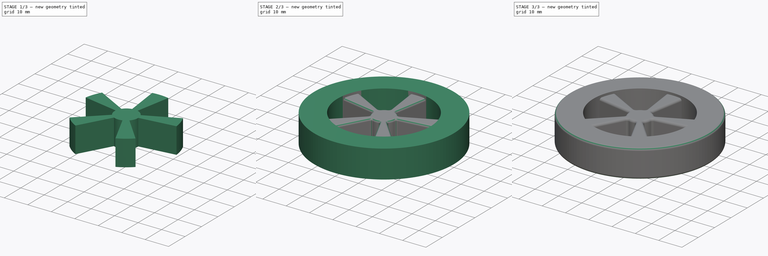
[diagram: build sequence overview — one tinted view per stage of 3, left to right]
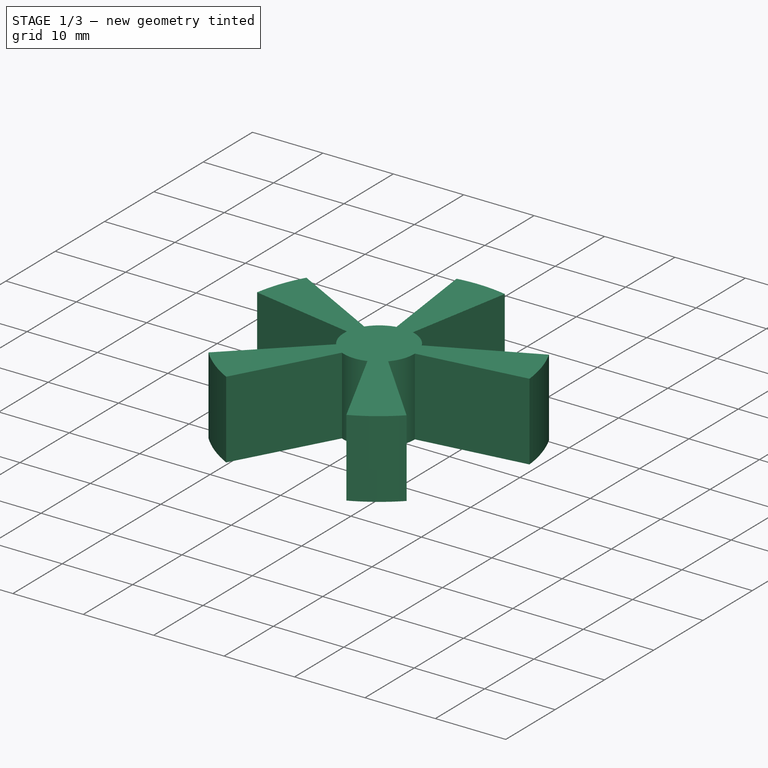
[diagram: stage 1 of 3 — iso view after this stage's code; geometry added in this stage tinted green]
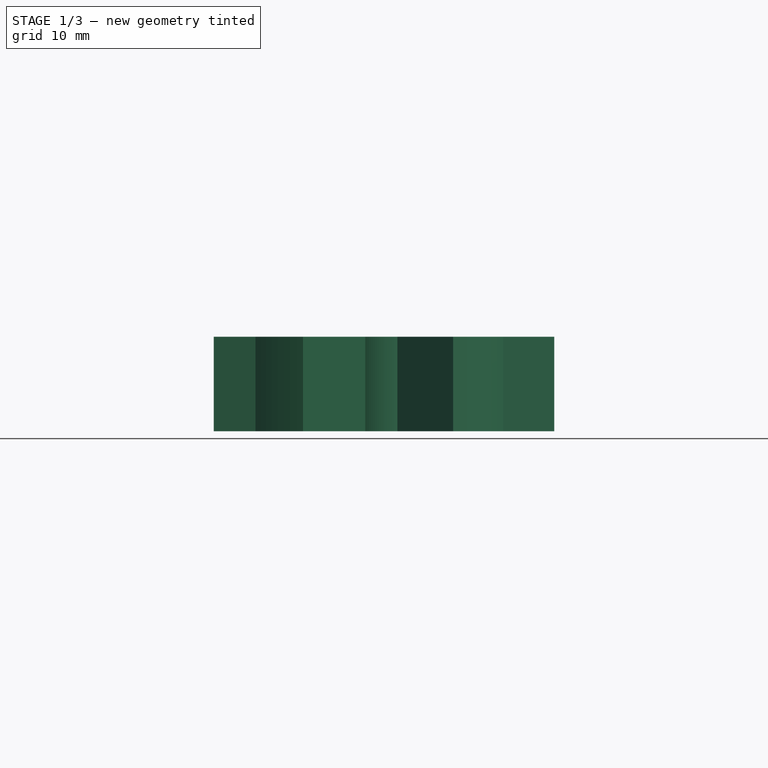
[diagram: stage 1 of 3 — front view after this stage's code; geometry added in this stage tinted green]
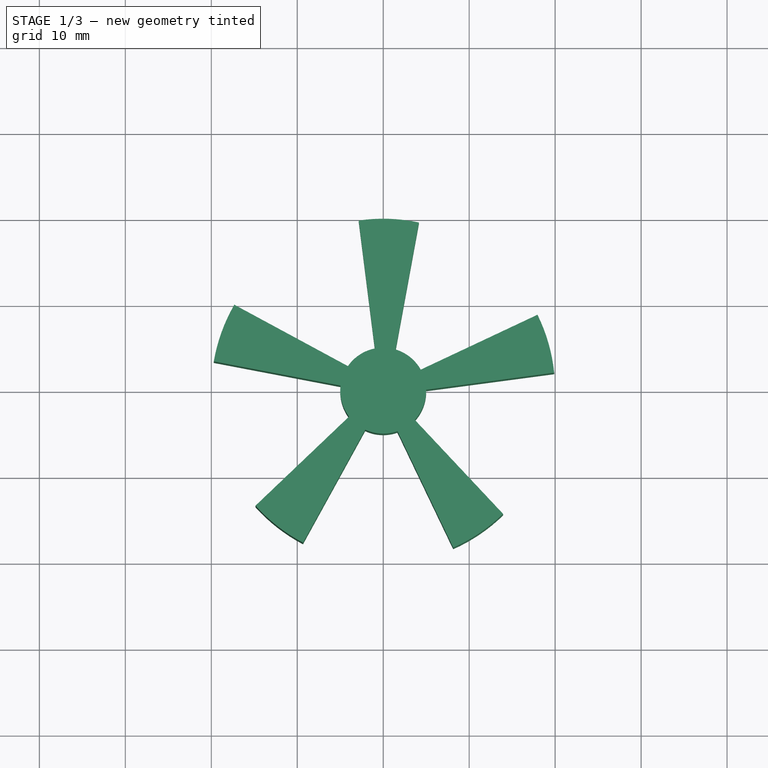
[diagram: stage 1 of 3 — top view after this stage's code; geometry added in this stage tinted green]
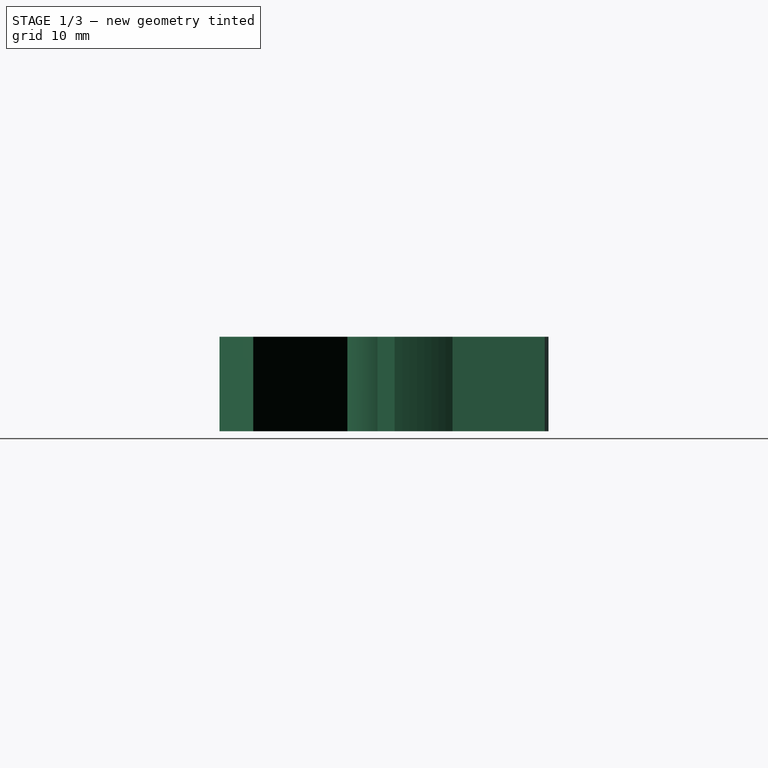
[diagram: stage 1 of 3 — right view after this stage's code; geometry added in this stage tinted green]
FCSTD DOCUMENT  (FreeCAD 0.18R4 (GitTag))
Label: wheel
License: All rights reserved
LicenseURL: http://en.wikipedia.org/wiki/All_rights_reserved
objects: Sketcher::SketchObject×2, PartDesign::Pad×2, PartDesign::Body×2, PartDesign::Fillet×2, App::Part×1, PartDesign::PolarPattern×1, PartDesign::Boolean×1, Part::Fillet×1
note: 13 computed .brp shape members not serialized (recipe doc carries the construction recipe); baked Part::Feature solids carry a one-line shape summary decoded from their .brp

FEATURE [PartDesign::Body] Body
  Group = -> [Sketch001,Pad]
  Origin = -> Origin001
  Tip = -> Pad
FEATURE [Sketcher::SketchObject] Sketch
  MapMode = 5
  Support = -> [XY_Plane002]
  sketch-geometry (4):
    g0: ArcOfCircle CenterX=0 CenterY=0 CenterZ=0 NormalX=0 NormalY=0 NormalZ=1 AngleXU=0 Radius=20 StartAngle=1.36159 EndAngle=1.71385
    g1: ArcOfCircle CenterX=0 CenterY=0 CenterZ=0 NormalX=0 NormalY=0 NormalZ=1 AngleXU=0 Radius=5 StartAngle=1.7665 EndAngle=7.56143
    g2: LineSegment StartX=-0.972303 StartY=4.90455 StartZ=0 EndX=-2.8514 EndY=19.7957 EndZ=0
    g3: LineSegment StartX=1.44198 StartY=4.78756 StartZ=0 EndX=4.15358 EndY=19.5639 EndZ=0
  constraints (8):
    c: Coincident(g0,g-1)
    c: Coincident(g1,g-1)
    c: Radius(g0) = 20
    c: Radius(g1) = 5
    c: Coincident(g3,g0)
    c: Coincident(g2,g0)
    c: Coincident(g1,g2)
    c: Coincident(g1,g3)
FEATURE [PartDesign::Pad] Pad001
  Length = 11
  Length2 = 100
  Profile = -> Sketch
  Refine = true
  Type = 0
FEATURE [PartDesign::PolarPattern] PolarPattern
  Angle = 360
  Axis = -> Sketch [N_Axis]
  BaseFeature = -> Pad001
  Occurrences = 5
  Originals = -> [Pad001]
  Refine = true
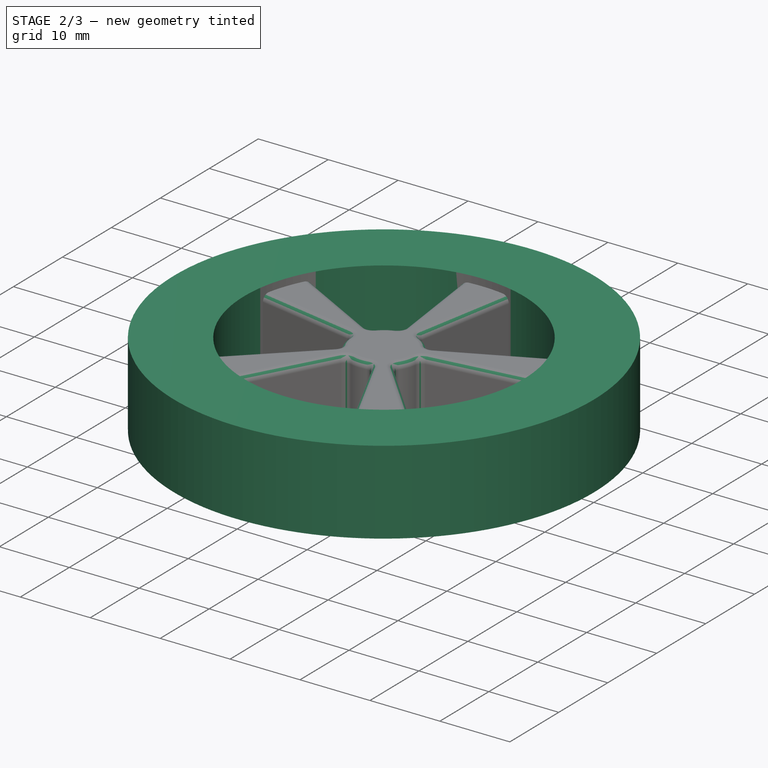
[diagram: stage 2 of 3 — iso view after this stage's code; geometry added in this stage tinted green]
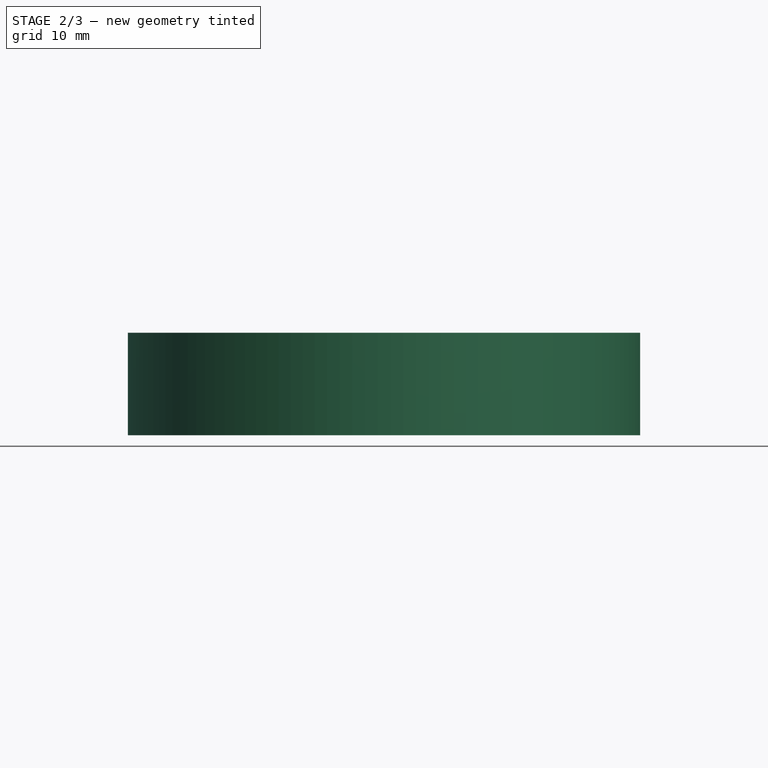
[diagram: stage 2 of 3 — front view after this stage's code; geometry added in this stage tinted green]
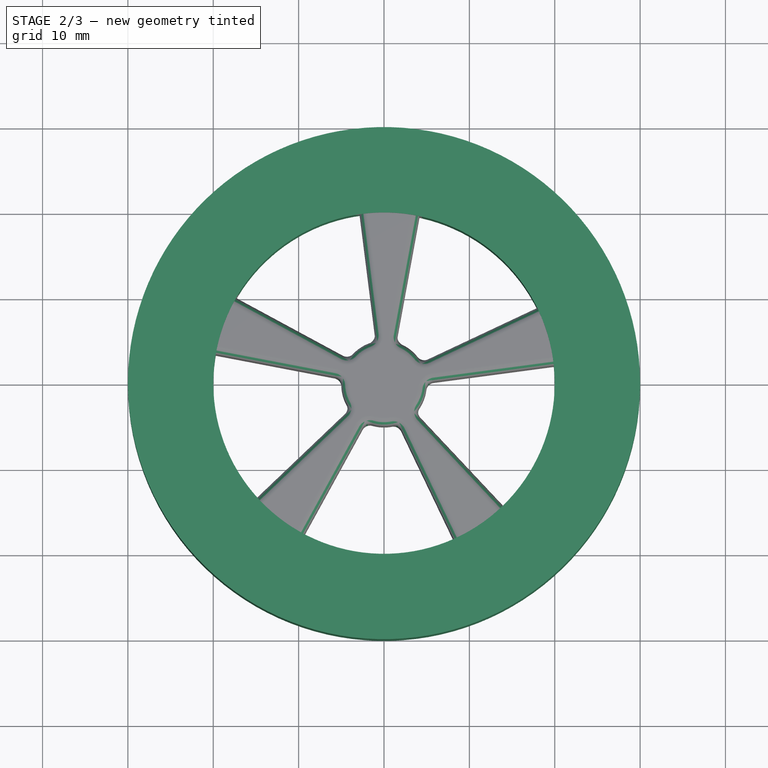
[diagram: stage 2 of 3 — top view after this stage's code; geometry added in this stage tinted green]
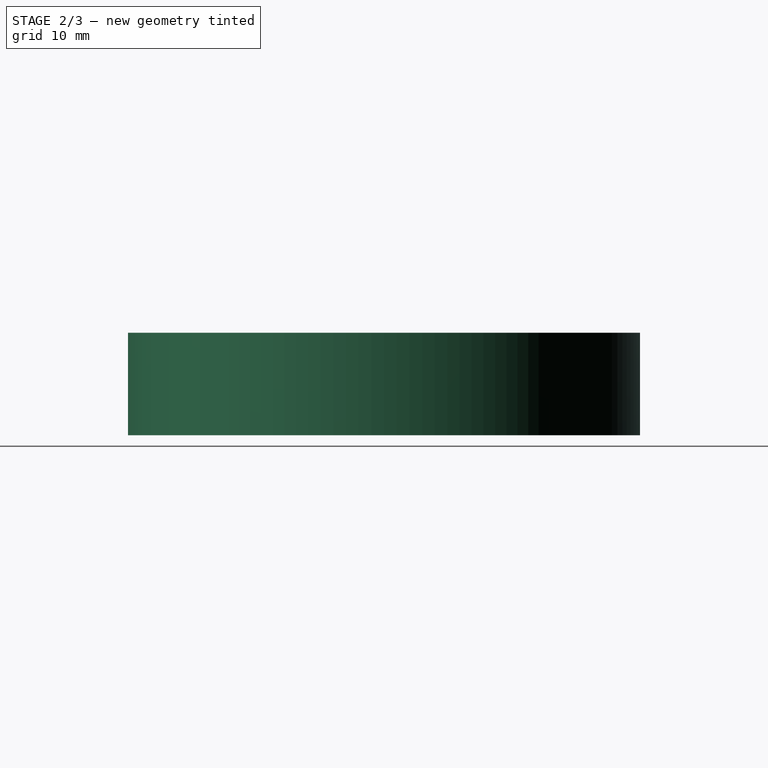
[diagram: stage 2 of 3 — right view after this stage's code; geometry added in this stage tinted green]
FEATURE [App::Part] Part
  Origin = -> Origin
FEATURE [Sketcher::SketchObject] Sketch001
  MapMode = 5
  Support = -> [XY_Plane001]
  sketch-geometry (2):
    g0: Circle CenterX=0 CenterY=0 CenterZ=0 NormalX=0 NormalY=0 NormalZ=1 AngleXU=0 Radius=30
    g1: Circle CenterX=0 CenterY=0 CenterZ=0 NormalX=0 NormalY=0 NormalZ=1 AngleXU=0 Radius=20
  constraints (3):
    c: Coincident(g0,g-1)
    c: Radius(g0) = 30
    c: Radius(g1) = 20
FEATURE [PartDesign::Pad] Pad
  Length = 12
  Length2 = 100
  Profile = -> Sketch001
  Type = 0
FEATURE [PartDesign::Fillet] Fillet
  Base = -> PolarPattern [Edge4,Edge2,Edge18,Edge25,Edge23,Edge15,Edge56,Edge54,Edge44,Edge42]
  BaseFeature = -> PolarPattern
  Radius = 1
FEATURE [PartDesign::Fillet] Fillet001
  Base = -> Fillet [Edge59,Edge37,Edge4,Edge35,Edge54,Edge50,Edge48,Edge46,Edge44,Edge42,Edge38,Edge39,Edge41,Edge43,Edge45,Edge63,Edge64,Edge62,Edge60,Edge58,Edge56,Edge55,Edge53,Edge51,Edge49]
  BaseFeature = -> Fillet
  Radius = 1
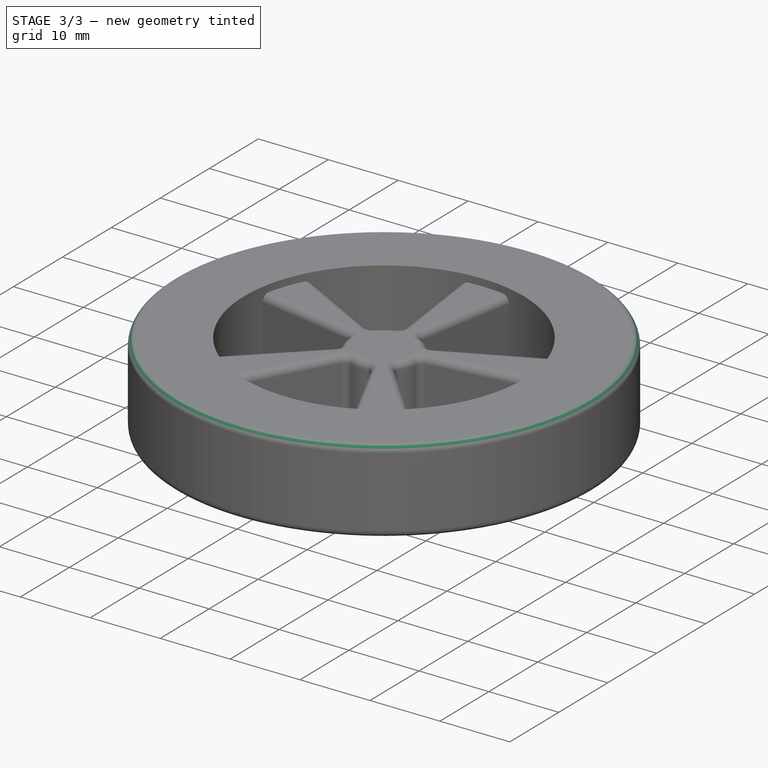
[diagram: stage 3 of 3 — iso view after this stage's code; geometry added in this stage tinted green]
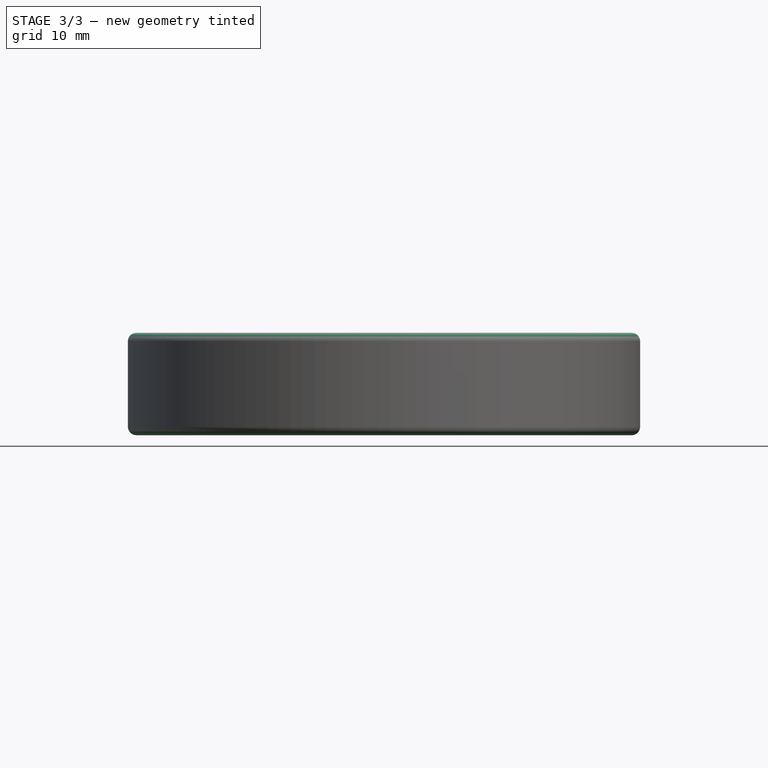
[diagram: stage 3 of 3 — front view after this stage's code; geometry added in this stage tinted green]
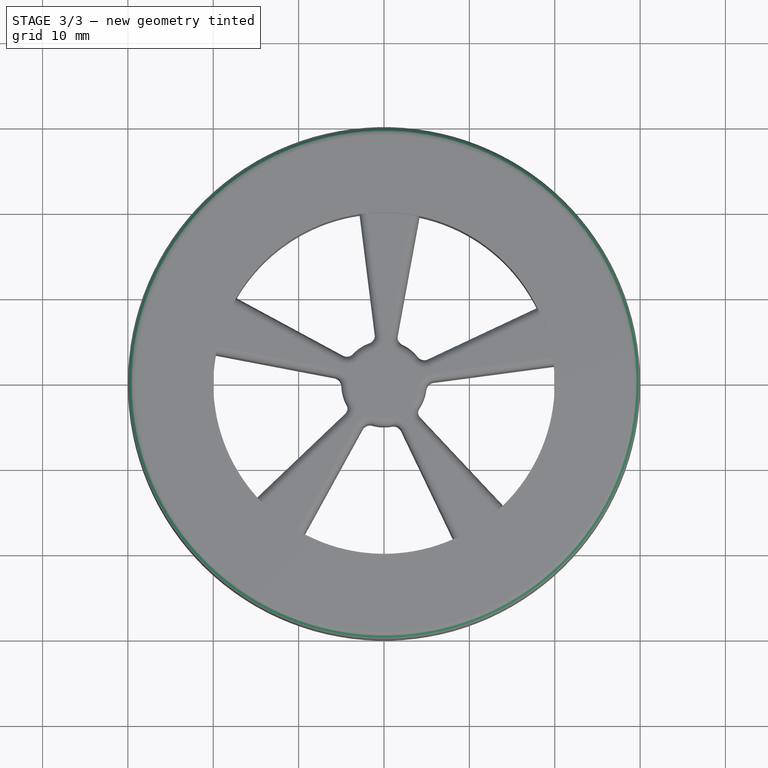
[diagram: stage 3 of 3 — top view after this stage's code; geometry added in this stage tinted green]
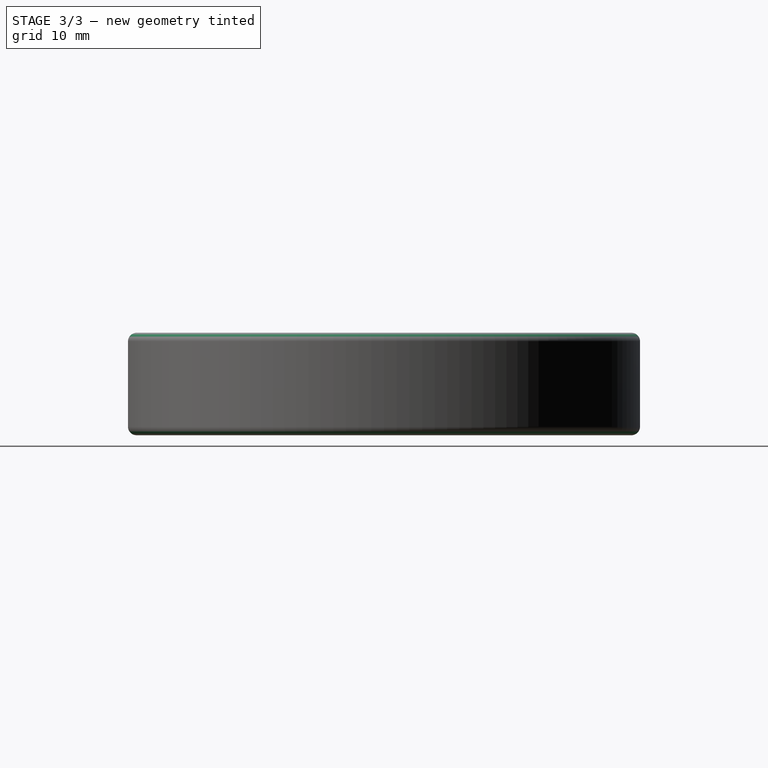
[diagram: stage 3 of 3 — right view after this stage's code; geometry added in this stage tinted green]
FEATURE [PartDesign::Boolean] Boolean
  BaseFeature = -> Fillet001
  Group = -> [Body]
  Type = 0
FEATURE [PartDesign::Body] Body001
  Group = -> [Sketch,Pad001,PolarPattern,Fillet,Fillet001,Boolean]
  Origin = -> Origin002
  Tip = -> Boolean
FEATURE [Part::Fillet] Fillet002
  Base = -> Boolean
  Edges = 2 edges r=1: [Edge2,Edge3]
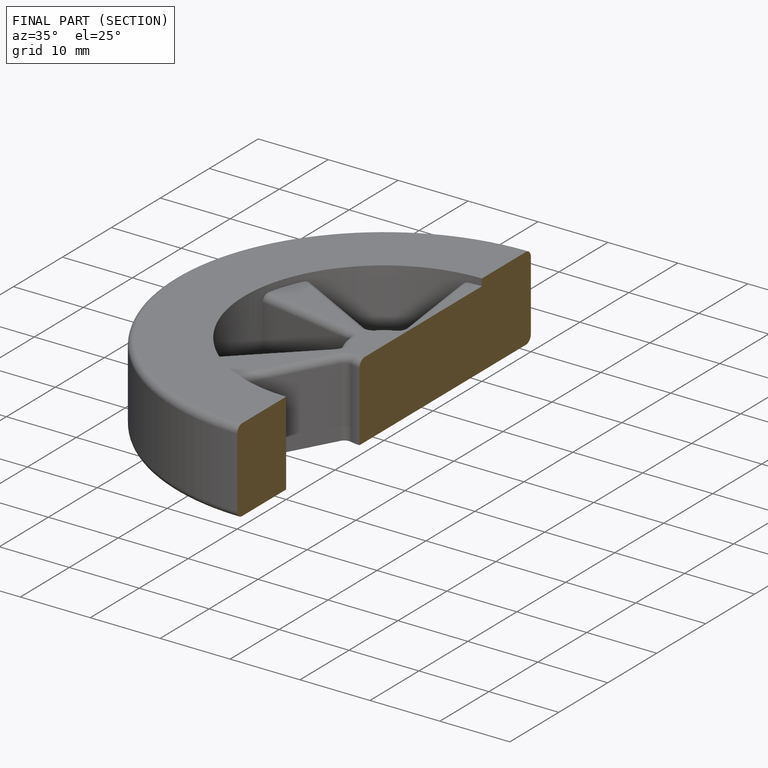
[diagram: finished part — half-section view (interior)]
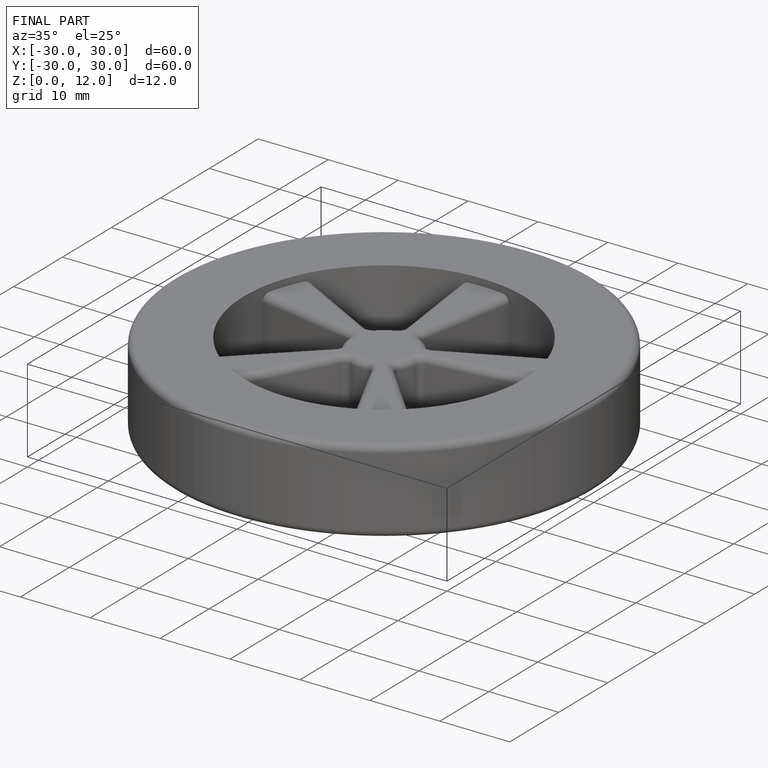
[diagram: finished part — iso view with bounding-box wireframe]
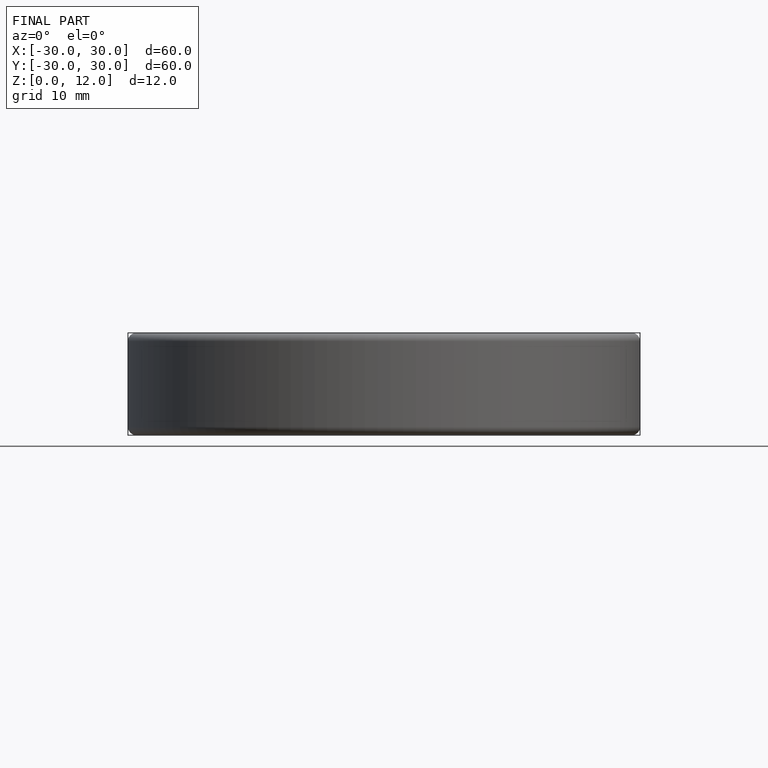
[diagram: finished part — front view with bounding-box wireframe]
